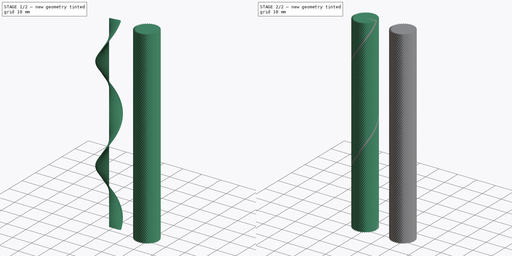
[diagram: build sequence overview — one tinted view per stage of 2, left to right]
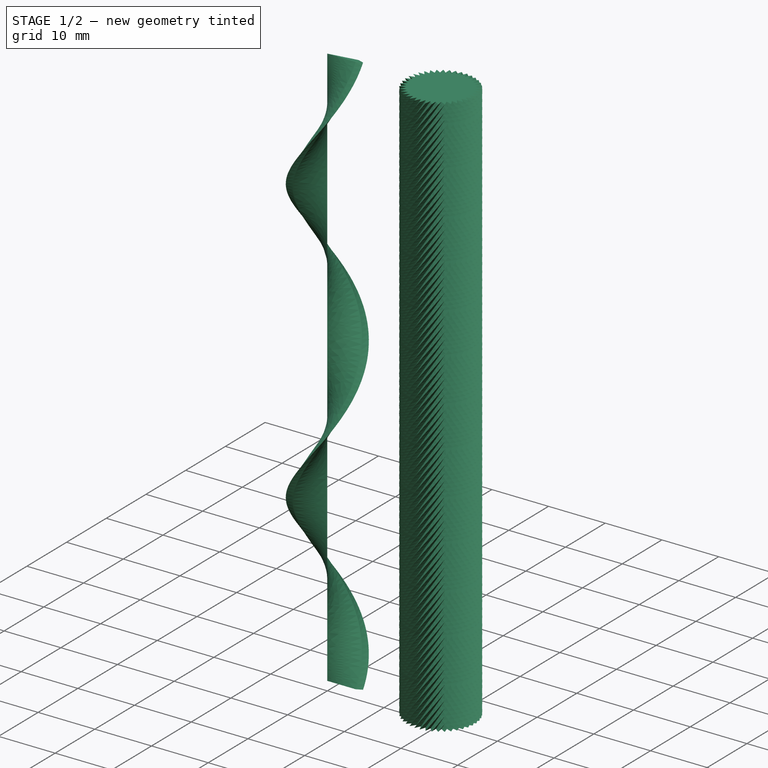
[diagram: stage 1 of 2 — iso view after this stage's code; geometry added in this stage tinted green]
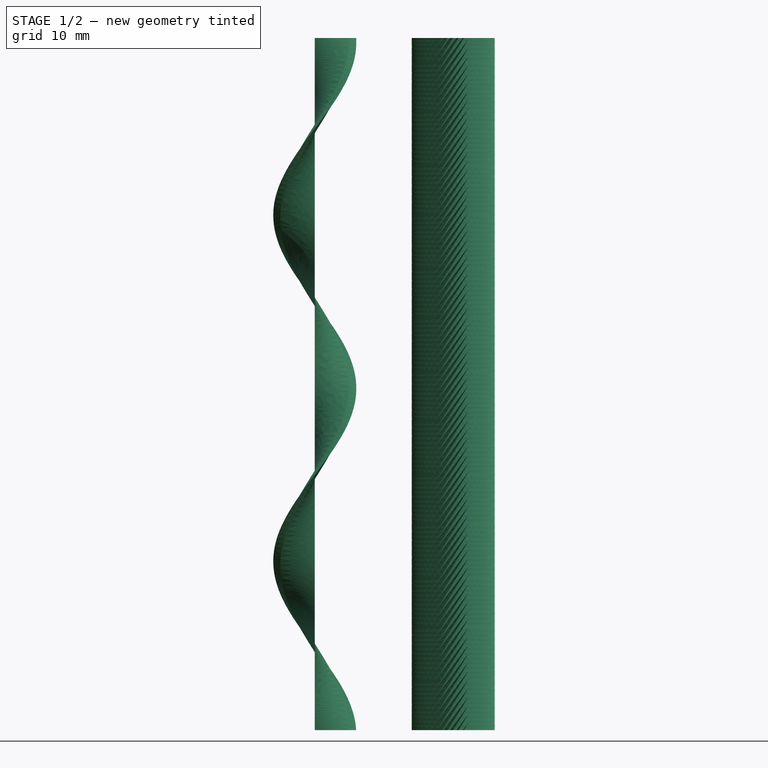
[diagram: stage 1 of 2 — front view after this stage's code; geometry added in this stage tinted green]
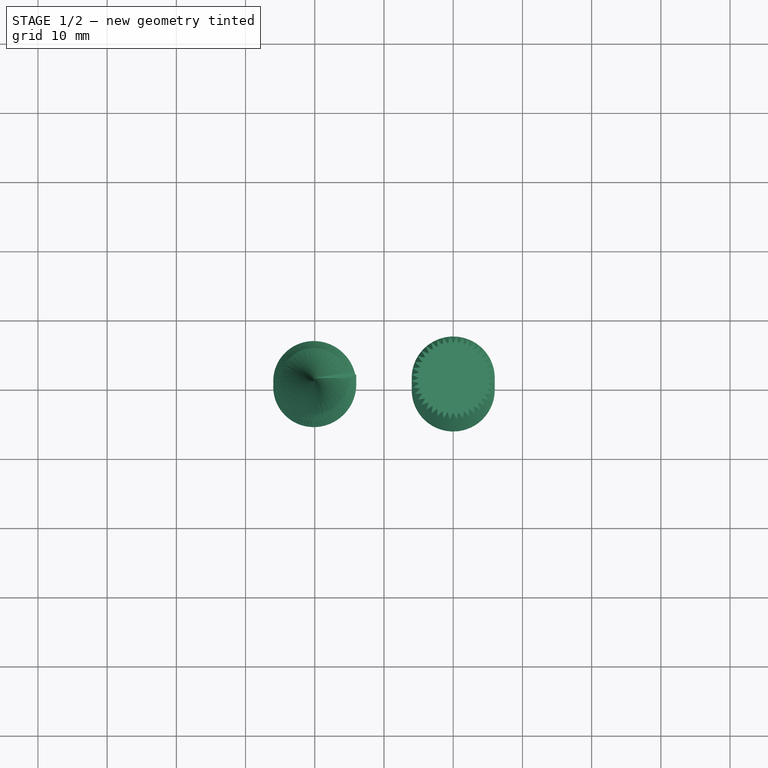
[diagram: stage 1 of 2 — top view after this stage's code; geometry added in this stage tinted green]
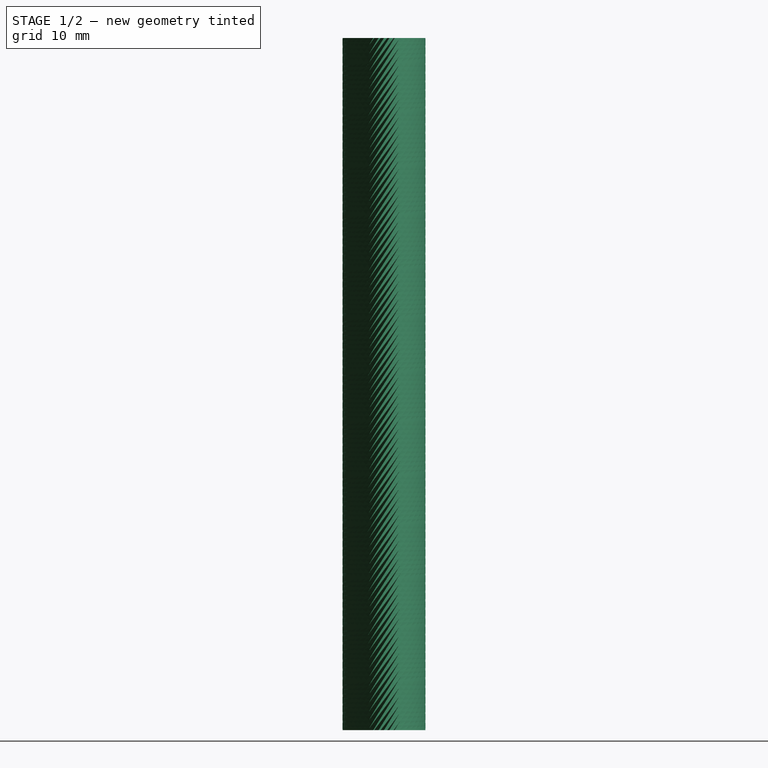
[diagram: stage 1 of 2 — right view after this stage's code; geometry added in this stage tinted green]
FCSTD DOCUMENT  (FreeCAD 1.1R39708 (Git))
Label: swepttooth
License: All rights reserved
objects: Sketcher::SketchObject×2, Part::Sweep×2, Part::Helix×1, Part::FeaturePython×1
note: 7 computed .brp shape members not serialized (recipe doc carries the construction recipe); baked Part::Feature solids carry a one-line shape summary decoded from their .brp

FEATURE [Part::Helix] Helix
  Angle = 0
  AttacherType = Attacher::AttachEngine3D
  Height = 100
  Length = 118.101
  LocalCoord = 0
  Pitch = 50
  Radius = 5
  SegmentLength = 0
  Style = 1
FEATURE [Sketcher::SketchObject] Sketch
  ArcFitTolerance = 1e-06
  ExternalTypes = [0]
  FullyConstrained = true
  MakeInternals = false
  expr: Constraints[8] = Helix.Radius
  expr: Constraints[9] = 360 / 40
  sketch-geometry (4):
    g0: LineSegment StartX=0 StartY=0 StartZ=0 EndX=5 EndY=0 EndZ=0
    g1: LineSegment StartX=5 StartY=0 StartZ=0 EndX=5.9815 EndY=0.470755 EndZ=0
    g2: LineSegment StartX=5.9815 StartY=0.470755 StartZ=0 EndX=4.93844 EndY=0.782172 EndZ=0
    g3: LineSegment StartX=4.93844 StartY=0.782172 StartZ=0 EndX=0 EndY=0 EndZ=0
  constraints (11):
    c: Coincident(g-1,g0)
    c: PointOnObject(g0,g-1)
    c: Coincident(g0,g1)
    c: Coincident(g1,g2)
    c: Coincident(g2,g3)
    c: Coincident(g3,g0)
    c: Equal(g0,g3)
    c: Equal(g1,g2)
    c: DistanceX(g0,g0) = 5
    c: Angle(g0,g3) = 0.15708
    c: Distance(g0,g1) = 6
FEATURE [Part::Sweep] Sweep
  Frenet = true
  Sections = -> [Sketch]
  Solid = true
  Spine = -> Helix [Edge1]
  Transition = 1
FEATURE [Sketcher::SketchObject] Sketch001
  ArcFitTolerance = 1e-06
  ExternalTypes = [0]
  FullyConstrained = false
  MakeInternals = false
  sketch-geometry (82):
    g0: LineSegment StartX=3.13537 StartY=5.11561 StartZ=0 EndX=2.27029 EndY=4.45486 EndZ=0
    g1: LineSegment StartX=2.27029 StartY=4.45486 StartZ=0 EndX=2.29651 EndY=5.54311 EndZ=0
    g2: LineSegment StartX=2.29651 StartY=5.54311 StartZ=0 EndX=1.54544 EndY=4.75517 EndZ=0
    g3: LineSegment StartX=1.54544 StartY=4.75517 StartZ=0 EndX=1.40111 EndY=5.83411 EndZ=0
    g4: LineSegment StartX=1.40111 StartY=5.83411 StartZ=0 EndX=0.782541 EndY=4.93838 EndZ=0
    g5: LineSegment StartX=0.782541 StartY=4.93838 StartZ=0 EndX=0.471201 EndY=5.98147 EndZ=0
    g6: LineSegment StartX=0.471201 StartY=5.98147 StartZ=0 EndX=0.000373226 EndY=5 EndZ=0
    g7: LineSegment StartX=0.000373226 StartY=5 StartZ=0 EndX=-0.470308 EndY=5.98154 EndZ=0
    g8: LineSegment StartX=-0.470308 StartY=5.98154 StartZ=0 EndX=-0.781804 EndY=4.9385 EndZ=0
    g9: LineSegment StartX=-0.781804 StartY=4.9385 StartZ=0 EndX=-1.40024 EndY=5.83432 EndZ=0
    g10: LineSegment StartX=-1.40024 StartY=5.83432 StartZ=0 EndX=-1.54473 EndY=4.7554 EndZ=0
    g11: LineSegment StartX=-1.54473 StartY=4.7554 StartZ=0 EndX=-2.29569 EndY=5.54345 EndZ=0
    g12: LineSegment StartX=-2.29569 StartY=5.54345 StartZ=0 EndX=-2.26962 EndY=4.4552 EndZ=0
    g13: LineSegment StartX=-2.26962 StartY=4.4552 StartZ=0 EndX=-3.13461 EndY=5.11607 EndZ=0
    g14: LineSegment StartX=-3.13461 StartY=5.11607 StartZ=0 EndX=-2.93862 EndY=4.0453 EndZ=0
    g15: LineSegment StartX=-2.93862 StartY=4.0453 StartZ=0 EndX=-3.89635 EndY=4.56273 EndZ=0
    g16: LineSegment StartX=-3.89635 StartY=4.56273 StartZ=0 EndX=-3.53527 EndY=3.5358 EndZ=0
    g17: LineSegment StartX=-3.53527 StartY=3.5358 StartZ=0 EndX=-4.56214 EndY=3.89703 EndZ=0
    g18: LineSegment StartX=-4.56214 StartY=3.89703 StartZ=0 EndX=-4.04487 EndY=2.93923 EndZ=0
    g19: LineSegment StartX=-4.04487 StartY=2.93923 StartZ=0 EndX=-5.11561 EndY=3.13537 EndZ=0
    g20: LineSegment StartX=-5.11561 StartY=3.13537 StartZ=0 EndX=-4.45486 EndY=2.27029 EndZ=0
    g21: LineSegment StartX=-4.45486 StartY=2.27029 StartZ=0 EndX=-5.54311 EndY=2.29651 EndZ=0
    g22: LineSegment StartX=-5.54311 StartY=2.29651 StartZ=0 EndX=-4.75517 EndY=1.54544 EndZ=0
    g23: LineSegment StartX=-4.75517 StartY=1.54544 StartZ=0 EndX=-5.83411 EndY=1.40111 EndZ=0
    g24: LineSegment StartX=-5.83411 StartY=1.40111 StartZ=0 EndX=-4.93838 EndY=0.782541 EndZ=0
    g25: LineSegment StartX=-4.93838 StartY=0.782541 StartZ=0 EndX=-5.98147 EndY=0.471201 EndZ=0
    g26: LineSegment StartX=-5.98147 StartY=0.471201 StartZ=0 EndX=-5 EndY=0.000373226 EndZ=0
    g27: LineSegment StartX=-5 StartY=0.000373226 StartZ=0 EndX=-5.98154 EndY=-0.470308 EndZ=0
    g28: LineSegment StartX=-5.98154 StartY=-0.470308 StartZ=0 EndX=-4.9385 EndY=-0.781804 EndZ=0
    g29: LineSegment StartX=-4.9385 StartY=-0.781804 StartZ=0 EndX=-5.83432 EndY=-1.40024 EndZ=0
    g30: LineSegment StartX=-5.83432 StartY=-1.40024 StartZ=0 EndX=-4.7554 EndY=-1.54473 EndZ=0
    g31: LineSegment StartX=-4.7554 StartY=-1.54473 StartZ=0 EndX=-5.54345 EndY=-2.29569 EndZ=0
    g32: LineSegment StartX=-5.54345 StartY=-2.29569 StartZ=0 EndX=-4.4552 EndY=-2.26962 EndZ=0
    g33: LineSegment StartX=-4.4552 StartY=-2.26962 StartZ=0 EndX=-5.11607 EndY=-3.13461 EndZ=0
    g34: LineSegment StartX=-5.11607 StartY=-3.13461 StartZ=0 EndX=-4.0453 EndY=-2.93862 EndZ=0
    g35: LineSegment StartX=-4.0453 StartY=-2.93862 StartZ=0 EndX=-4.56273 EndY=-3.89635 EndZ=0
    g36: LineSegment StartX=-4.56273 StartY=-3.89635 StartZ=0 EndX=-3.5358 EndY=-3.53527 EndZ=0
    g37: LineSegment StartX=-3.5358 StartY=-3.53527 StartZ=0 EndX=-3.89703 EndY=-4.56214 EndZ=0
    g38: LineSegment StartX=-3.89703 StartY=-4.56214 StartZ=0 EndX=-2.93923 EndY=-4.04487 EndZ=0
    g39: LineSegment StartX=-2.93923 StartY=-4.04487 StartZ=0 EndX=-3.13537 EndY=-5.11561 EndZ=0
    g40: LineSegment StartX=-3.13537 StartY=-5.11561 StartZ=0 EndX=-2.27029 EndY=-4.45486 EndZ=0
    g41: LineSegment StartX=-2.27029 StartY=-4.45486 StartZ=0 EndX=-2.29651 EndY=-5.54311 EndZ=0
    g42: LineSegment StartX=-2.29651 StartY=-5.54311 StartZ=0 EndX=-1.54544 EndY=-4.75517 EndZ=0
    g43: LineSegment StartX=-1.54544 StartY=-4.75517 StartZ=0 EndX=-1.40111 EndY=-5.83411 EndZ=0
    g44: LineSegment StartX=-1.40111 StartY=-5.83411 StartZ=0 EndX=-0.782541 EndY=-4.93838 EndZ=0
    g45: LineSegment StartX=-0.782541 StartY=-4.93838 StartZ=0 EndX=-0.471201 EndY=-5.98147 EndZ=0
    g46: LineSegment StartX=-0.471201 StartY=-5.98147 StartZ=0 EndX=-0.000373226 EndY=-5 EndZ=0
    g47: LineSegment StartX=-0.000373226 StartY=-5 StartZ=0 EndX=0.470308 EndY=-5.98154 EndZ=0
    g48: LineSegment StartX=0.470308 StartY=-5.98154 StartZ=0 EndX=0.781804 EndY=-4.9385 EndZ=0
    g49: LineSegment StartX=0.781804 StartY=-4.9385 StartZ=0 EndX=1.40024 EndY=-5.83432 EndZ=0
    g50: LineSegment StartX=1.40024 StartY=-5.83432 StartZ=0 EndX=1.54473 EndY=-4.7554 EndZ=0
    g51: LineSegment StartX=1.54473 StartY=-4.7554 StartZ=0 EndX=2.29569 EndY=-5.54345 EndZ=0
    g52: LineSegment StartX=2.29569 StartY=-5.54345 StartZ=0 EndX=2.26962 EndY=-4.4552 EndZ=0
    g53: LineSegment StartX=2.26962 StartY=-4.4552 StartZ=0 EndX=3.13461 EndY=-5.11607 EndZ=0
    g54: LineSegment StartX=3.13461 StartY=-5.11607 StartZ=0 EndX=2.93862 EndY=-4.0453 EndZ=0
    g55: LineSegment StartX=2.93862 StartY=-4.0453 StartZ=0 EndX=3.89635 EndY=-4.56273 EndZ=0
    g56: LineSegment StartX=3.89635 StartY=-4.56273 StartZ=0 EndX=3.53527 EndY=-3.5358 EndZ=0
    g57: LineSegment StartX=3.53527 StartY=-3.5358 StartZ=0 EndX=4.56214 EndY=-3.89703 EndZ=0
    g58: LineSegment StartX=4.56214 StartY=-3.89703 StartZ=0 EndX=4.04487 EndY=-2.93923 EndZ=0
    g59: LineSegment StartX=4.04487 StartY=-2.93923 StartZ=0 EndX=5.11561 EndY=-3.13537 EndZ=0
    g60: LineSegment StartX=5.11561 StartY=-3.13537 StartZ=0 EndX=4.45486 EndY=-2.27029 EndZ=0
    g61: LineSegment StartX=4.45486 StartY=-2.27029 StartZ=0 EndX=5.54311 EndY=-2.29651 EndZ=0
    g62: LineSegment StartX=5.54311 StartY=-2.29651 StartZ=0 EndX=4.75517 EndY=-1.54544 EndZ=0
    g63: LineSegment StartX=4.75517 StartY=-1.54544 StartZ=0 EndX=5.83411 EndY=-1.40111 EndZ=0
    g64: LineSegment StartX=5.83411 StartY=-1.40111 StartZ=0 EndX=4.93838 EndY=-0.782541 EndZ=0
    g65: LineSegment StartX=4.93838 StartY=-0.782541 StartZ=0 EndX=5.98147 EndY=-0.471201 EndZ=0
    g66: LineSegment StartX=5.98147 StartY=-0.471201 StartZ=0 EndX=5 EndY=-0.000373226 EndZ=0
    g67: LineSegment StartX=5 StartY=-0.000373226 StartZ=0 EndX=5.98154 EndY=0.470308 EndZ=0
    g68: LineSegment StartX=5.98154 StartY=0.470308 StartZ=0 EndX=4.9385 EndY=0.781804 EndZ=0
    g69: LineSegment StartX=4.9385 StartY=0.781804 StartZ=0 EndX=5.83432 EndY=1.40024 EndZ=0
    g70: LineSegment StartX=5.83432 StartY=1.40024 StartZ=0 EndX=4.7554 EndY=1.54473 EndZ=0
    g71: LineSegment StartX=4.7554 StartY=1.54473 StartZ=0 EndX=5.54345 EndY=2.29569 EndZ=0
    g72: LineSegment StartX=5.54345 StartY=2.29569 StartZ=0 EndX=4.4552 EndY=2.26962 EndZ=0
    g73: LineSegment StartX=4.4552 StartY=2.26962 StartZ=0 EndX=5.11607 EndY=3.13461 EndZ=0
    g74: LineSegment StartX=5.11607 StartY=3.13461 StartZ=0 EndX=4.0453 EndY=2.93862 EndZ=0
    g75: LineSegment StartX=4.0453 StartY=2.93862 StartZ=0 EndX=4.56273 EndY=3.89635 EndZ=0
    g76: LineSegment StartX=4.56273 StartY=3.89635 StartZ=0 EndX=3.5358 EndY=3.53527 EndZ=0
    g77: LineSegment StartX=3.5358 StartY=3.53527 StartZ=0 EndX=3.89703 EndY=4.56214 EndZ=0
    g78: LineSegment StartX=3.89703 StartY=4.56214 StartZ=0 EndX=2.93923 EndY=4.04487 EndZ=0
    g79: LineSegment StartX=2.93923 StartY=4.04487 StartZ=0 EndX=3.13537 EndY=5.11561 EndZ=0
    g80: Circle [constr] CenterX=0 CenterY=0 CenterZ=0 NormalX=0 NormalY=0 NormalZ=1 AngleXU=0 Radius=5
    g81: Circle [constr] CenterX=0 CenterY=0 CenterZ=0 NormalX=0 NormalY=0 NormalZ=1 AngleXU=0 Radius=6
  constraints (165):
    c: Equal(g0, g1-g79) x79
    c: PointOnObject(g0,g80)
    c: PointOnObject(g1,g81)
    c: PointOnObject(g2,g80)
    c: PointOnObject(g3,g81)
    c: PointOnObject(g4,g80)
    c: PointOnObject(g5,g81)
    c: PointOnObject(g6,g80)
    c: PointOnObject(g7,g81)
    c: PointOnObject(g8,g80)
    c: PointOnObject(g9,g81)
    c: PointOnObject(g10,g80)
    c: PointOnObject(g11,g81)
    c: PointOnObject(g12,g80)
    c: PointOnObject(g13,g81)
    c: PointOnObject(g14,g80)
    c: PointOnObject(g15,g81)
    c: PointOnObject(g16,g80)
    c: PointOnObject(g17,g81)
    c: PointOnObject(g18,g80)
    c: PointOnObject(g19,g81)
    c: PointOnObject(g20,g80)
    c: PointOnObject(g21,g81)
    c: PointOnObject(g22,g80)
    c: PointOnObject(g23,g81)
    c: PointOnObject(g24,g80)
    c: PointOnObject(g25,g81)
    c: PointOnObject(g26,g80)
    c: PointOnObject(g27,g81)
    c: PointOnObject(g28,g80)
    c: PointOnObject(g29,g81)
    c: PointOnObject(g30,g80)
    c: PointOnObject(g31,g81)
    c: PointOnObject(g32,g80)
    c: PointOnObject(g33,g81)
    c: PointOnObject(g34,g80)
    c: PointOnObject(g35,g81)
    c: PointOnObject(g36,g80)
    c: PointOnObject(g37,g81)
    c: PointOnObject(g38,g80)
    c: PointOnObject(g39,g81)
    c: PointOnObject(g40,g80)
    c: PointOnObject(g41,g81)
    c: PointOnObject(g42,g80)
    c: PointOnObject(g43,g81)
    c: PointOnObject(g44,g80)
    c: PointOnObject(g45,g81)
    c: PointOnObject(g46,g80)
    c: PointOnObject(g47,g81)
    c: PointOnObject(g48,g80)
    c: PointOnObject(g49,g81)
    c: PointOnObject(g50,g80)
    c: PointOnObject(g51,g81)
    c: PointOnObject(g52,g80)
    c: PointOnObject(g53,g81)
    c: PointOnObject(g54,g80)
    c: PointOnObject(g55,g81)
    c: PointOnObject(g56,g80)
    c: PointOnObject(g57,g81)
    c: PointOnObject(g58,g80)
    c: PointOnObject(g59,g81)
    c: PointOnObject(g60,g80)
    c: PointOnObject(g61,g81)
    c: PointOnObject(g62,g80)
    c: PointOnObject(g63,g81)
    c: PointOnObject(g64,g80)
    c: PointOnObject(g65,g81)
    c: PointOnObject(g66,g80)
    c: PointOnObject(g67,g81)
    c: PointOnObject(g68,g80)
    c: PointOnObject(g69,g81)
    c: PointOnObject(g70,g80)
    c: PointOnObject(g71,g81)
    c: PointOnObject(g72,g80)
    c: PointOnObject(g73,g81)
    c: PointOnObject(g74,g80)
    c: PointOnObject(g75,g81)
    c: PointOnObject(g76,g80)
    c: PointOnObject(g77,g81)
    c: PointOnObject(g78,g80)
    c: PointOnObject(g79,g81)
    c: Coincident(g0,g1)
    c: Coincident(g1,g2)
    c: Coincident(g2,g3)
    c: Coincident(g3,g4)
    c: Coincident(g4,g5)
    c: Coincident(g5,g6)
    c: Coincident(g6,g7)
    c: Coincident(g7,g8)
    c: Coincident(g8,g9)
    c: Coincident(g9,g10)
    c: Coincident(g10,g11)
    c: Coincident(g11,g12)
    c: Coincident(g12,g13)
    c: Coincident(g13,g14)
    c: Coincident(g14,g15)
    c: Coincident(g15,g16)
    c: Coincident(g16,g17)
    c: Coincident(g17,g18)
    c: Coincident(g18,g19)
    c: Coincident(g19,g20)
    c: Coincident(g20,g21)
    c: Coincident(g21,g22)
    c: Coincident(g22,g23)
    c: Coincident(g23,g24)
    c: Coincident(g24,g25)
    c: Coincident(g25,g26)
    c: Coincident(g26,g27)
    c: Coincident(g27,g28)
    c: Coincident(g28,g29)
    c: Coincident(g29,g30)
    c: Coincident(g30,g31)
    c: Coincident(g31,g32)
    c: Coincident(g32,g33)
    c: Coincident(g33,g34)
    c: Coincident(g34,g35)
    c: Coincident(g35,g36)
    c: Coincident(g36,g37)
    c: Coincident(g37,g38)
    c: Coincident(g38,g39)
    c: Coincident(g39,g40)
    c: Coincident(g40,g41)
    c: Coincident(g41,g42)
    c: Coincident(g42,g43)
    c: Coincident(g43,g44)
    c: Coincident(g44,g45)
    c: Coincident(g45,g46)
    c: Coincident(g46,g47)
    c: Coincident(g47,g48)
    c: Coincident(g48,g49)
    c: Coincident(g49,g50)
    c: Coincident(g50,g51)
    c: Coincident(g51,g52)
    c: Coincident(g52,g53)
    c: Coincident(g53,g54)
    c: Coincident(g54,g55)
    c: Coincident(g55,g56)
    c: Coincident(g56,g57)
    c: Coincident(g57,g58)
    c: Coincident(g58,g59)
    c: Coincident(g59,g60)
    c: Coincident(g60,g61)
    c: Coincident(g61,g62)
    c: Coincident(g62,g63)
    c: Coincident(g63,g64)
    c: Coincident(g64,g65)
    c: Coincident(g65,g66)
    c: Coincident(g66,g67)
    c: Coincident(g67,g68)
    c: Coincident(g68,g69)
    c: Coincident(g69,g70)
    c: Coincident(g70,g71)
    c: Coincident(g71,g72)
    c: Coincident(g72,g73)
    c: Coincident(g73,g74)
    c: Coincident(g74,g75)
    c: Coincident(g75,g76)
    c: Coincident(g76,g77)
    c: Coincident(g77,g78)
    c: Coincident(g78,g79)
    c: Coincident(g79,g0)
    c: Coincident(g80,g81)
    c: Coincident(g-1,g80)
    c: Radius(g80) = 5
    c: Radius(g81) = 6
FEATURE [Part::Sweep] Sweep001
  Frenet = true
  Placement = pos=(20,0,0) rot=(0,0,1;0rad)
  Sections = -> [Sketch001]
  Solid = true
  Spine = -> Helix [Edge1]
  Transition = 1
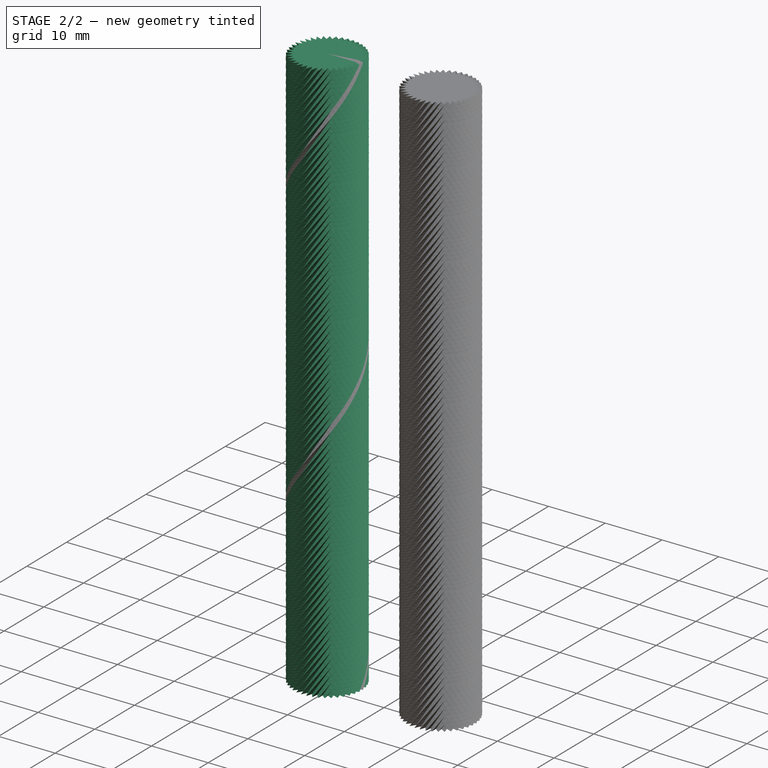
[diagram: stage 2 of 2 — iso view after this stage's code; geometry added in this stage tinted green]
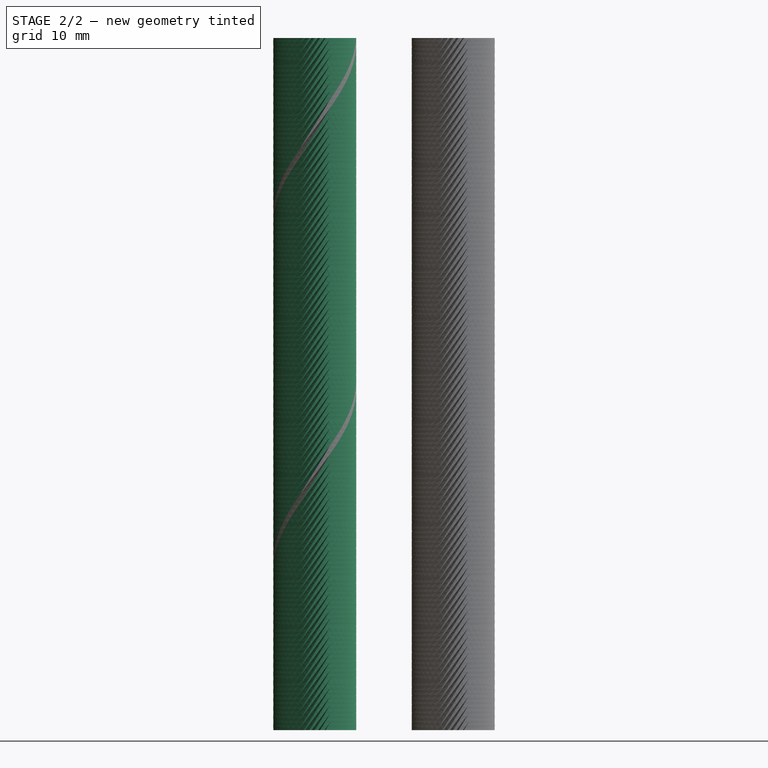
[diagram: stage 2 of 2 — front view after this stage's code; geometry added in this stage tinted green]
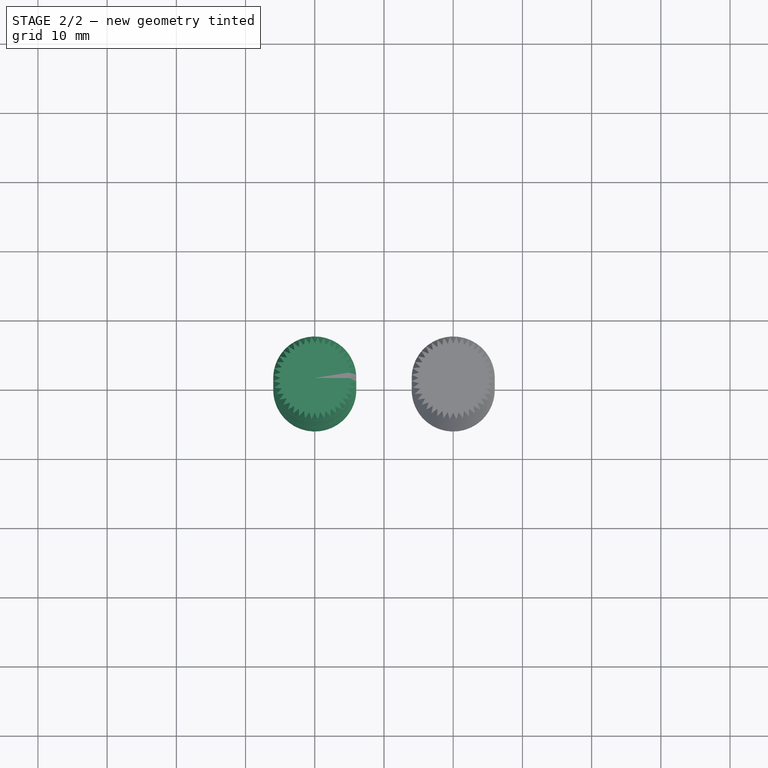
[diagram: stage 2 of 2 — top view after this stage's code; geometry added in this stage tinted green]
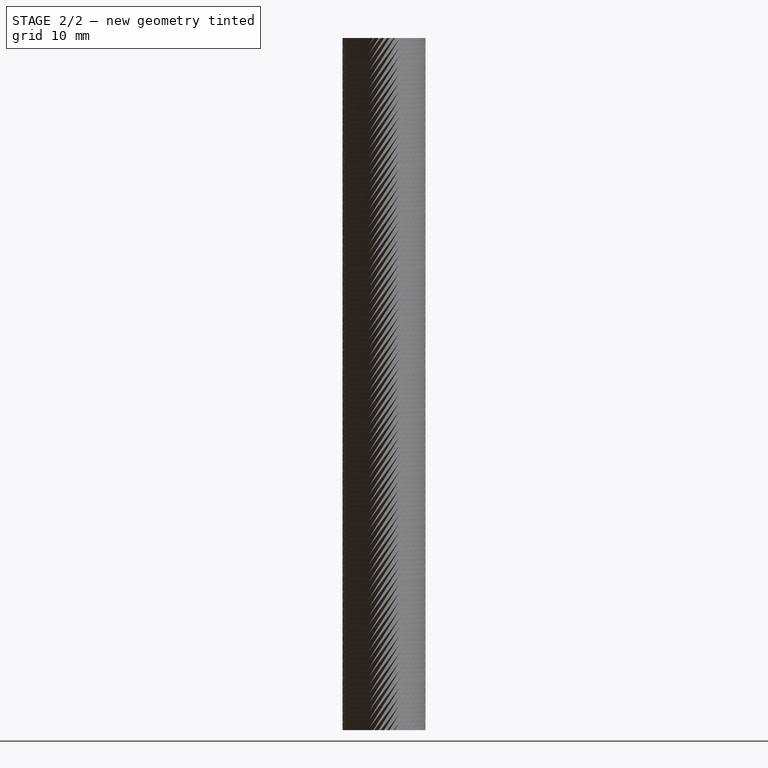
[diagram: stage 2 of 2 — right view after this stage's code; geometry added in this stage tinted green]
FEATURE [Part::FeaturePython] Array  # Draft array (typed FeaturePython)
  AlwaysSyncPlacement = false
  Angle = 360
  ArrayType = 1
  Axis = (0,0,1)
  Base = -> Sweep
  Center = (0,0,0)
  Count = 40
  ExpandArray = false
  Fuse = false
  IntervalAxis = (0,0,0)
  IntervalX = (50,0,0)
  IntervalY = (0,50,0)
  IntervalZ = (0,0,50)
  NumberCircles = 3
  NumberPolar = 40
  NumberX = 2
  NumberY = 2
  NumberZ = 1
  PlacementList = 40 placements: [(0,0,0),(0,0,0),(0,0,0),(0,0,0),(0,0,0),(0,0,0),(0,0,0),(0,0,0),(0,0,0),(0,0,0),(0,0,0),(0,0,0),(0,0,0),(0,0,0),(0,0,0),(0,0,0),(0,0,0),(0,0,0),(0,0,0),(0,0,0),(0,0,0),(0,0,0),(0,0,0),(0,0,0),(0,0,0),(0,0,0),(0,0,0),(0,0,0),(0,0,0),(0,0,0),(0,0,0),(0,0,0),(0,0,0),(0,0,0),(0,0,0),(0,0,0),(0,0,0),(0,0,0),(0,0,0),(0,0,0)]
  RadialDistance = 50
  ScaleList = (40) [(1,1,1),(1,1,1),(1,1,1),(1,1,1),(1,1,1),(1,1,1),(1,1,1),(1,1,1),(1,1,1),(1,1,1),(1,1,1),(1,1,1),(1,1,1),(1,1,1),(1,1,1),(1,1,1),(1,1,1),(1,1,1),+22 more]
  Symmetry = 1
  TangentialDistance = 25
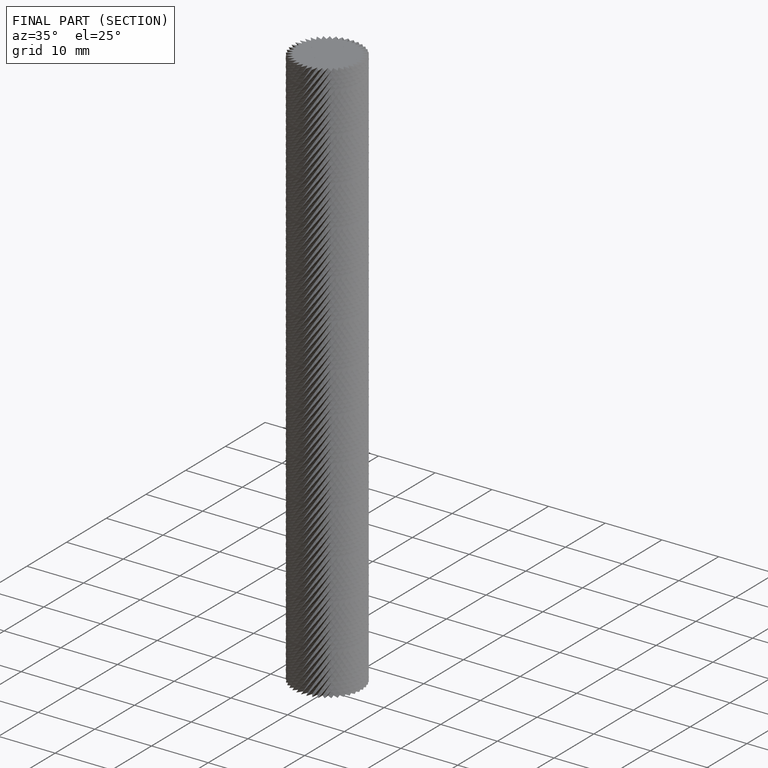
[diagram: finished part — half-section view (interior)]
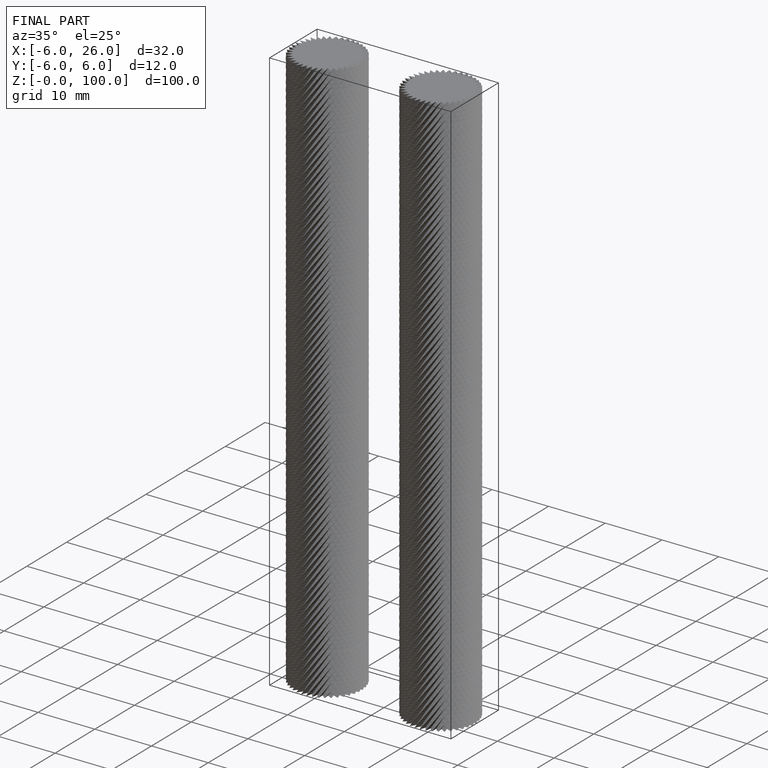
[diagram: finished part — iso view with bounding-box wireframe]
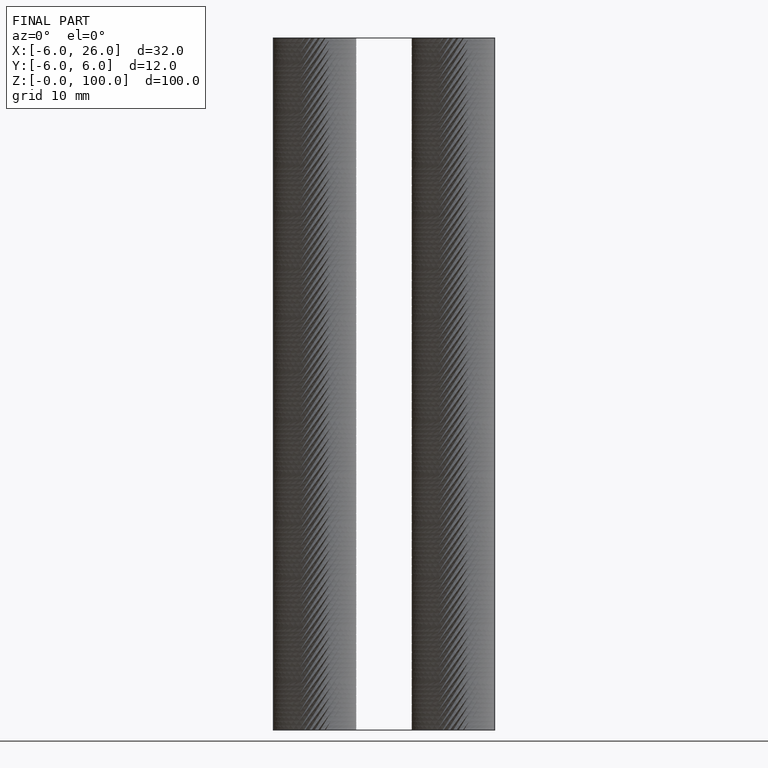
[diagram: finished part — front view with bounding-box wireframe]
